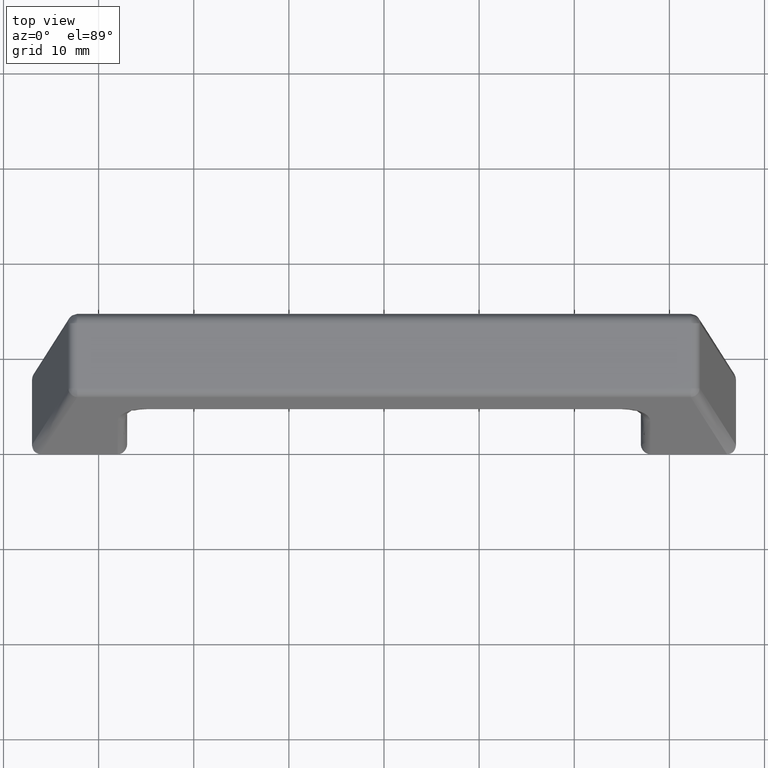
[diagram: clean part render]
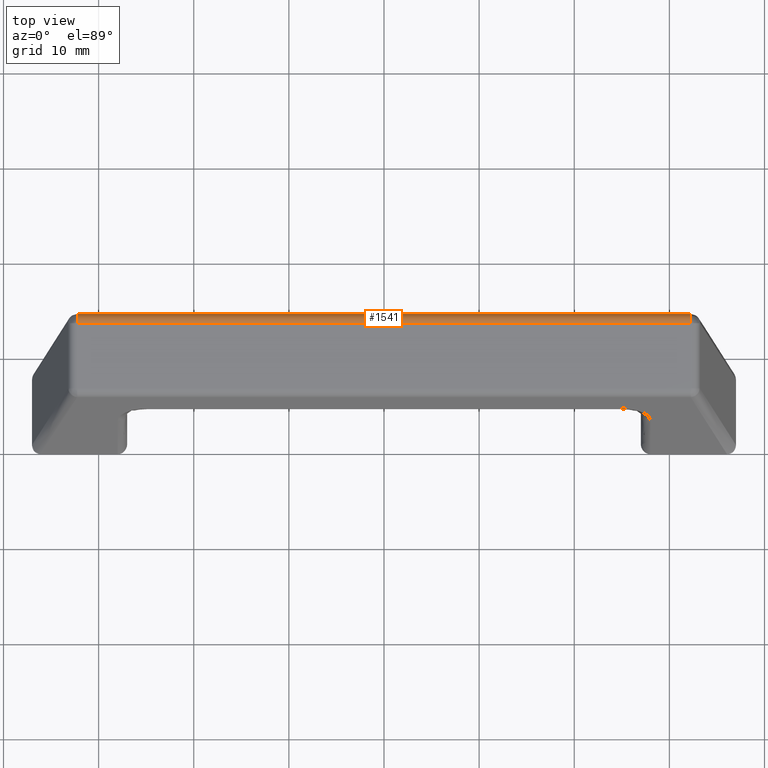
[diagram: same view with one face highlighted and labeled with its STEP entity id]
A machine part, top view. The second image highlights one B-rep face of the part: STEP entity #1541.
In plain terms, the highlighted face is a freeform B-spline surface patch.
Its self-contained STEP definition (entity closure, byte-faithful):
#1443=CARTESIAN_POINT('',(-32.241546304475548,14.450857840270819,13.628644561557699));
#1444=VERTEX_POINT('',#1443);
#1462=CARTESIAN_POINT('',(-32.241546304475548,13.522367054996540,15.0));
#1463=VERTEX_POINT('',#1462);
#1477=CARTESIAN_POINT('',(-32.241546304475548,13.522367054996501,15.0));
#1478=CARTESIAN_POINT('',(-32.241546304475541,14.052953347890353,15.000000000000005));
#1479=CARTESIAN_POINT('',(-32.241546304475548,14.350423646795120,14.560644522651250));
#1480=CARTESIAN_POINT('',(-32.241546304475541,14.647893945699893,14.121289045302509));
#1481=CARTESIAN_POINT('',(-32.241546304475548,14.450857840270819,13.628644561557699));
#1489=(BOUNDED_CURVE()B_SPLINE_CURVE(2,(#1477,#1478,#1479,#1480,#1481),.UNSPECIFIED.,.F.,.U.)B_SPLINE_CURVE_WITH_KNOTS((3,2,3),(0.0,0.500000000000000,1.0),.UNSPECIFIED.)CURVE()GEOMETRIC_REPRESENTATION_ITEM()RATIONAL_B_SPLINE_CURVE((1.0,0.883358512341182,1.0,0.883358512341182,1.0))REPRESENTATION_ITEM(''));
#1490=EDGE_CURVE('',#1463,#1444,#1489,.T.);
#1495=CARTESIAN_POINT('',(-33.853623619699327,13.492687464863909,14.999559463928771));
#1496=CARTESIAN_POINT('',(33.893925552579923,13.492687464863909,14.999559463928771));
#1497=CARTESIAN_POINT('',(-33.853623619699327,15.156233772069841,15.048954596831004));
#1498=CARTESIAN_POINT('',(33.893925552579915,15.156233772069841,15.048954596831004));
#1499=CARTESIAN_POINT('',(-33.853623619699327,14.418859401154160,13.556940779036539));
#1500=CARTESIAN_POINT('',(33.893925552579923,14.418859401154160,13.556940779036539));
#1508=(BOUNDED_SURFACE()B_SPLINE_SURFACE(1,2,((#1495,#1497,#1499),(#1496,#1498,#1500)),.UNSPECIFIED.,.F.,.F.,.U.)B_SPLINE_SURFACE_WITH_KNOTS((2,2),(3,3),(0.0,67.747549172279250),(0.0,2.263091112751087),.UNSPECIFIED.)GEOMETRIC_REPRESENTATION_ITEM()RATIONAL_B_SPLINE_SURFACE(((1.0,0.515038074910054,1.0),(1.0,0.515038074910054,1.0)))REPRESENTATION_ITEM('')SURFACE());
#1509=CARTESIAN_POINT('',(32.241546304475548,13.522367054996540,15.0));
#1510=VERTEX_POINT('',#1509);
#1511=CARTESIAN_POINT('',(32.241546304475548,14.450857840270819,13.628644561557699));
#1512=VERTEX_POINT('',#1511);
#1513=CARTESIAN_POINT('',(32.241546304475548,13.522367054996540,15.0));
#1514=CARTESIAN_POINT('',(32.241546304475541,14.052953347890265,15.000000000000004));
#1515=CARTESIAN_POINT('',(32.241546304475548,14.350423646795029,14.560644522651261));
#1516=CARTESIAN_POINT('',(32.241546304475541,14.647893945699803,14.121289045302532));
#1517=CARTESIAN_POINT('',(32.241546304475548,14.450857840270819,13.628644561557699));
#1525=(BOUNDED_CURVE()B_SPLINE_CURVE(2,(#1513,#1514,#1515,#1516,#1517),.UNSPECIFIED.,.F.,.U.)B_SPLINE_CURVE_WITH_KNOTS((3,2,3),(0.0,0.500000000000000,1.0),.UNSPECIFIED.)CURVE()GEOMETRIC_REPRESENTATION_ITEM()RATIONAL_B_SPLINE_CURVE((1.0,0.883358512341185,1.0,0.883358512341185,1.0))REPRESENTATION_ITEM(''));
#1526=EDGE_CURVE('',#1510,#1512,#1525,.T.);
#1527=ORIENTED_EDGE('',*,*,#1526,.T.);
#1528=CARTESIAN_POINT('',(-32.241546304475548,14.450857840270819,13.628644561557699));
#1529=CARTESIAN_POINT('',(32.241546304475548,14.450857840270819,13.628644561557699));
#1530=QUASI_UNIFORM_CURVE('',1,(#1528,#1529),.UNSPECIFIED.,.F.,.U.);
#1531=EDGE_CURVE('',#1444,#1512,#1530,.T.);
#1532=ORIENTED_EDGE('',*,*,#1531,.F.);
#1533=ORIENTED_EDGE('',*,*,#1490,.F.);
#1534=CARTESIAN_POINT('',(32.241546304475548,13.522367054996540,15.0));
#1535=CARTESIAN_POINT('',(-32.241546304475548,13.522367054996540,15.0));
#1536=QUASI_UNIFORM_CURVE('',1,(#1534,#1535),.UNSPECIFIED.,.F.,.U.);
#1537=EDGE_CURVE('',#1510,#1463,#1536,.T.);
#1538=ORIENTED_EDGE('',*,*,#1537,.F.);
#1539=EDGE_LOOP('',(#1527,#1532,#1533,#1538));
#1540=FACE_OUTER_BOUND('',#1539,.T.);
#1541=ADVANCED_FACE('',(#1540),#1508,.T.);